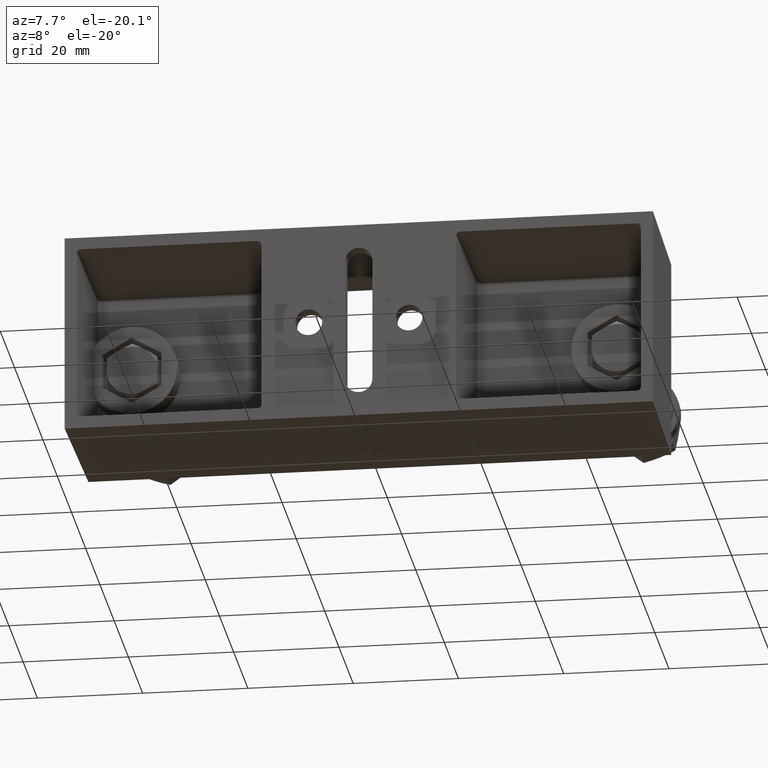
[diagram: clean part render]
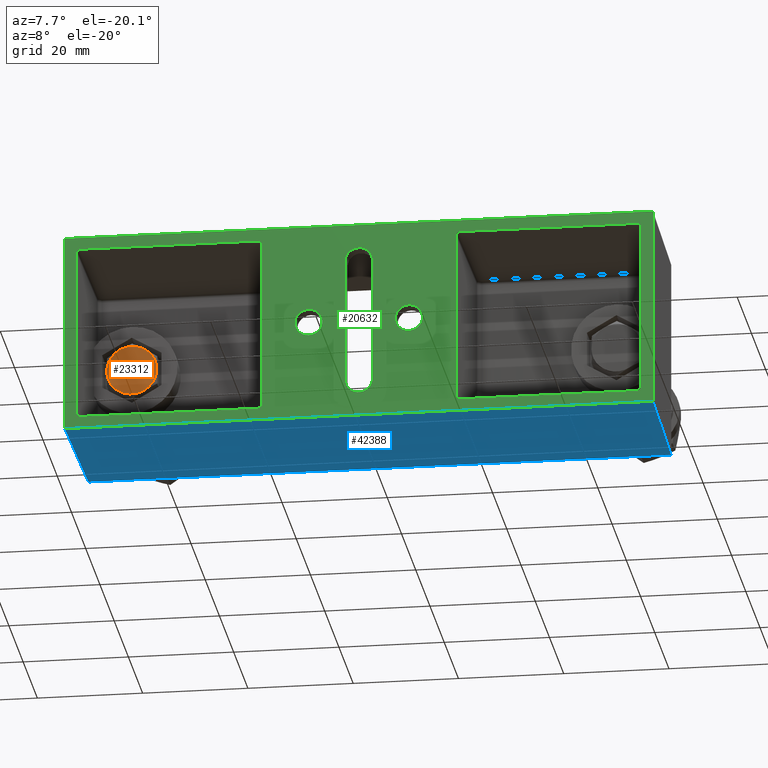
[diagram: same view with three faces highlighted in distinct colors, each labeled with its STEP entity id]
A machine part, auxiliary view with three faces highlighted in distinct colors.
Their STEP definitions:

[orange] entity #23312 — the highlighted planar face has unit normal (0, 1, 0).
#628 = CARTESIAN_POINT ( 'NONE',  ( -1.906750000000000200, 0.8499999999999998700, -0.1623082179422241100 ) ) ;
#3222 = PLANE ( 'NONE',  #10741 ) ;
#3864 = AXIS2_PLACEMENT_3D ( 'NONE', #33698, #4684, #38562 ) ;
#4433 = CIRCLE ( 'NONE', #41683, 0.1875000000000001100 ) ;
#4684 = DIRECTION ( 'NONE',  ( 8.465504826371808000E-018, 1.000000000000000000, 8.788272997978071500E-018 ) ) ;
#4848 = VERTEX_POINT ( 'NONE', #27042 ) ;
#6708 = CARTESIAN_POINT ( 'NONE',  ( -1.719250000000000200, 0.8499999999999998700, -0.1623082179422239700 ) ) ;
#7992 = CIRCLE ( 'NONE', #59649, 0.1875000000000001100 ) ;
#8142 = DIRECTION ( 'NONE',  ( 8.465504826371808000E-018, 1.000000000000000000, 8.788272997978071500E-018 ) ) ;
#8252 = CARTESIAN_POINT ( 'NONE',  ( -2.000500000000000600, 0.8499999999999998700, 7.154526735808339300E-005 ) ) ;
#10741 = AXIS2_PLACEMENT_3D ( 'NONE', #56500, #27566, #61371 ) ;
#13500 = EDGE_CURVE ( 'NONE', #28396, #42262, #23507, .T. ) ;
#13915 = EDGE_CURVE ( 'NONE', #4848, #40392, #56020, .T. ) ;
#17656 = CARTESIAN_POINT ( 'NONE',  ( -1.813000000000000400, 0.8499999999999998700, 7.154526735824306800E-005 ) ) ;
#22471 = DIRECTION ( 'NONE',  ( -1.000000000000000000, 0.0000000000000000000, -6.939000616719477800E-016 ) ) ;
#23312 = ADVANCED_FACE ( 'NONE', ( #33316 ), #3222, .F. ) ;
#23507 = CIRCLE ( 'NONE', #23693, 0.1875000000000001100 ) ;
#23693 = AXIS2_PLACEMENT_3D ( 'NONE', #37152, #8142, #42013 ) ;
#25293 = DIRECTION ( 'NONE',  ( -8.465504826371808000E-018, -1.000000000000000000, -8.788272997978071500E-018 ) ) ;
#27042 = CARTESIAN_POINT ( 'NONE',  ( -1.625500000000000200, 0.8499999999999998700, 7.154526735840274400E-005 ) ) ;
#27098 = DIRECTION ( 'NONE',  ( 8.465504826371808000E-018, 1.000000000000000000, 8.788272997978071500E-018 ) ) ;
#27106 = DIRECTION ( 'NONE',  ( 8.465504826371808000E-018, 1.000000000000000000, 8.788272997978071500E-018 ) ) ;
#27566 = DIRECTION ( 'NONE',  ( 8.465504826371808000E-018, 1.000000000000000000, 8.788272997978071500E-018 ) ) ;
#28081 = EDGE_LOOP ( 'NONE', ( #43594, #58351, #38431, #30215, #52988, #31304 ) ) ;
#28396 = VERTEX_POINT ( 'NONE', #628 ) ;
#29869 = CARTESIAN_POINT ( 'NONE',  ( -1.719250000000000600, 0.8499999999999998700, 0.1624513084769406100 ) ) ;
#30215 = ORIENTED_EDGE ( 'NONE', *, *, #13915, .F. ) ;
#31304 = ORIENTED_EDGE ( 'NONE', *, *, #58977, .F. ) ;
#33143 = VERTEX_POINT ( 'NONE', #61008 ) ;
#33316 = FACE_OUTER_BOUND ( 'NONE', #28081, .T. ) ;
#33698 = CARTESIAN_POINT ( 'NONE',  ( -1.813000000000000400, 0.8499999999999998700, 7.154526735824306800E-005 ) ) ;
#37152 = CARTESIAN_POINT ( 'NONE',  ( -1.813000000000000400, 0.8499999999999998700, 7.154526735824306800E-005 ) ) ;
#38431 = ORIENTED_EDGE ( 'NONE', *, *, #56091, .F. ) ;
#38562 = DIRECTION ( 'NONE',  ( -1.000000000000000000, 0.0000000000000000000, -6.939000616719477800E-016 ) ) ;
#40392 = VERTEX_POINT ( 'NONE', #6708 ) ;
#40877 = AXIS2_PLACEMENT_3D ( 'NONE', #56053, #27106, #60924 ) ;
#41683 = AXIS2_PLACEMENT_3D ( 'NONE', #54297, #25293, #59111 ) ;
#42013 = DIRECTION ( 'NONE',  ( -1.000000000000000000, 0.0000000000000000000, -6.939000616719477800E-016 ) ) ;
#42262 = VERTEX_POINT ( 'NONE', #8252 ) ;
#43594 = ORIENTED_EDGE ( 'NONE', *, *, #51833, .F. ) ;
#50774 = CIRCLE ( 'NONE', #55193, 0.1875000000000001100 ) ;
#51522 = DIRECTION ( 'NONE',  ( 8.465504826371808000E-018, 1.000000000000000000, 8.788272997978071500E-018 ) ) ;
#51833 = EDGE_CURVE ( 'NONE', #42262, #33143, #7992, .T. ) ;
#52988 = ORIENTED_EDGE ( 'NONE', *, *, #59735, .T. ) ;
#53592 = VERTEX_POINT ( 'NONE', #29869 ) ;
#54297 = CARTESIAN_POINT ( 'NONE',  ( -1.813000000000000400, 0.8499999999999998700, 7.154526735824306800E-005 ) ) ;
#55193 = AXIS2_PLACEMENT_3D ( 'NONE', #56042, #27098, #60912 ) ;
#55333 = CIRCLE ( 'NONE', #40877, 0.1875000000000001100 ) ;
#56020 = CIRCLE ( 'NONE', #3864, 0.1875000000000001100 ) ;
#56042 = CARTESIAN_POINT ( 'NONE',  ( -1.813000000000000400, 0.8499999999999998700, 7.154526735824306800E-005 ) ) ;
#56053 = CARTESIAN_POINT ( 'NONE',  ( -1.813000000000000400, 0.8499999999999998700, 7.154526735824306800E-005 ) ) ;
#56091 = EDGE_CURVE ( 'NONE', #40392, #28396, #55333, .T. ) ;
#56500 = CARTESIAN_POINT ( 'NONE',  ( -2.000500000000000600, 0.8499999999999998700, 0.3248310716865227500 ) ) ;
#58351 = ORIENTED_EDGE ( 'NONE', *, *, #13500, .F. ) ;
#58977 = EDGE_CURVE ( 'NONE', #33143, #53592, #50774, .T. ) ;
#59111 = DIRECTION ( 'NONE',  ( 1.000000000000000000, 0.0000000000000000000, 6.939000616719477800E-016 ) ) ;
#59649 = AXIS2_PLACEMENT_3D ( 'NONE', #17656, #51522, #22471 ) ;
#59735 = EDGE_CURVE ( 'NONE', #4848, #53592, #4433, .T. ) ;
#60912 = DIRECTION ( 'NONE',  ( -1.000000000000000000, 0.0000000000000000000, -6.939000616719477800E-016 ) ) ;
#60924 = DIRECTION ( 'NONE',  ( -1.000000000000000000, 0.0000000000000000000, -6.939000616719477800E-016 ) ) ;
#61008 = CARTESIAN_POINT ( 'NONE',  ( -1.906750000000000600, 0.8499999999999998700, 0.1624513084769404800 ) ) ;
#61371 = DIRECTION ( 'NONE',  ( -1.000000000000000000, 8.465504826371814100E-018, -6.938893903907226400E-016 ) ) ;

[blue] entity #42388 — the highlighted planar face has unit normal (0, 0, -1).
#2942 = VECTOR ( 'NONE', #34441, 39.37007874015748100 ) ;
#3169 = CARTESIAN_POINT ( 'NONE',  ( -2.200000000000000200, 0.0000000000000000000, -0.7500000000000001100 ) ) ;
#4234 = VERTEX_POINT ( 'NONE', #34630 ) ;
#5184 = EDGE_CURVE ( 'NONE', #57744, #4234, #15859, .T. ) ;
#5628 = PLANE ( 'NONE',  #32879 ) ;
#9544 = CARTESIAN_POINT ( 'NONE',  ( 2.200000000000000200, 0.0000000000000000000, -0.7500000000000001100 ) ) ;
#10614 = ORIENTED_EDGE ( 'NONE', *, *, #19152, .F. ) ;
#11334 = DIRECTION ( 'NONE',  ( -1.000000000000000000, -0.0000000000000000000, -0.0000000000000000000 ) ) ;
#12669 = EDGE_LOOP ( 'NONE', ( #17403, #39104, #10614, #45114 ) ) ;
#15859 = LINE ( 'NONE', #24674, #2942 ) ;
#17403 = ORIENTED_EDGE ( 'NONE', *, *, #46808, .F. ) ;
#18715 = DIRECTION ( 'NONE',  ( -0.01745240643727953200, -0.9998476951563912700, -0.0000000000000000000 ) ) ;
#19152 = EDGE_CURVE ( 'NONE', #4234, #44688, #61108, .T. ) ;
#24674 = CARTESIAN_POINT ( 'NONE',  ( -2.200000000000000200, 0.0000000000000000000, -0.7500000000000001100 ) ) ;
#25514 = CARTESIAN_POINT ( 'NONE',  ( 0.0000000000000000000, 0.0000000000000000000, -0.7500000000000001100 ) ) ;
#25591 = LINE ( 'NONE', #57184, #51392 ) ;
#30409 = DIRECTION ( 'NONE',  ( -1.000000000000000000, 0.0000000000000000000, -0.0000000000000000000 ) ) ;
#32241 = CARTESIAN_POINT ( 'NONE',  ( -2.179664849358631300, 1.165000000000000000, -0.7500000000000001100 ) ) ;
#32879 = AXIS2_PLACEMENT_3D ( 'NONE', #25514, #59343, #30409 ) ;
#34441 = DIRECTION ( 'NONE',  ( 1.000000000000000000, 0.0000000000000000000, 0.0000000000000000000 ) ) ;
#34630 = CARTESIAN_POINT ( 'NONE',  ( 2.200000000000000200, 0.0000000000000000000, -0.7500000000000001100 ) ) ;
#35471 = VECTOR ( 'NONE', #11334, 39.37007874015748100 ) ;
#38033 = CARTESIAN_POINT ( 'NONE',  ( 2.179664849358631300, 1.165000000000000000, -0.7500000000000001100 ) ) ;
#38550 = DIRECTION ( 'NONE',  ( -0.01745240643727953200, 0.9998476951563912700, 0.0000000000000000000 ) ) ;
#39104 = ORIENTED_EDGE ( 'NONE', *, *, #59828, .F. ) ;
#40368 = CARTESIAN_POINT ( 'NONE',  ( -2.179664849358631300, 1.165000000000000000, -0.7500000000000001100 ) ) ;
#42388 = ADVANCED_FACE ( 'NONE', ( #60477 ), #5628, .T. ) ;
#44688 = VERTEX_POINT ( 'NONE', #38033 ) ;
#45114 = ORIENTED_EDGE ( 'NONE', *, *, #5184, .F. ) ;
#46808 = EDGE_CURVE ( 'NONE', #55329, #57744, #25591, .T. ) ;
#48320 = VECTOR ( 'NONE', #38550, 39.37007874015748100 ) ;
#51392 = VECTOR ( 'NONE', #18715, 39.37007874015748100 ) ;
#55329 = VERTEX_POINT ( 'NONE', #32241 ) ;
#57184 = CARTESIAN_POINT ( 'NONE',  ( -2.200000000000000200, 0.0000000000000000000, -0.7500000000000001100 ) ) ;
#57744 = VERTEX_POINT ( 'NONE', #3169 ) ;
#59343 = DIRECTION ( 'NONE',  ( 0.0000000000000000000, 0.0000000000000000000, -1.000000000000000000 ) ) ;
#59828 = EDGE_CURVE ( 'NONE', #44688, #55329, #61153, .T. ) ;
#60477 = FACE_OUTER_BOUND ( 'NONE', #12669, .T. ) ;
#61108 = LINE ( 'NONE', #9544, #48320 ) ;
#61153 = LINE ( 'NONE', #40368, #35471 ) ;

[green] entity #20632 — the highlighted planar face has unit normal (0, 1, 0).
#61 = ORIENTED_EDGE ( 'NONE', *, *, #24441, .T. ) ;
#239 = AXIS2_PLACEMENT_3D ( 'NONE', #1350, #35245, #6212 ) ;
#538 = CARTESIAN_POINT ( 'NONE',  ( 0.7274999999999999200, 0.0000000000000000000, 0.6300045691453081100 ) ) ;
#683 = VERTEX_POINT ( 'NONE', #886 ) ;
#800 = EDGE_LOOP ( 'NONE', ( #20197, #61524, #9992, #48160 ) ) ;
#858 = VECTOR ( 'NONE', #30399, 39.37007874015748100 ) ;
#875 = EDGE_CURVE ( 'NONE', #26017, #26027, #6018, .T. ) ;
#886 = CARTESIAN_POINT ( 'NONE',  ( 2.080004569145308400, 0.0000000000000000000, 0.6600000000000000300 ) ) ;
#950 = CARTESIAN_POINT ( 'NONE',  ( -0.7574954308546917300, 0.0000000000000000000, 0.6599999999999999200 ) ) ;
#959 = CARTESIAN_POINT ( 'NONE',  ( 0.7274999999999998100, 0.0000000000000000000, -0.6475765939548033800 ) ) ;
#1063 = ORIENTED_EDGE ( 'NONE', *, *, #41734, .T. ) ;
#1327 = CARTESIAN_POINT ( 'NONE',  ( -2.110000000000000300, 0.0000000000000000000, 0.6475765939548034900 ) ) ;
#1350 = CARTESIAN_POINT ( 'NONE',  ( -1.721241076201604300E-016, 0.0000000000000000000, -0.4685000000000000300 ) ) ;
#1707 =( BOUNDED_CURVE ( )  B_SPLINE_CURVE ( 3, ( #21078, #50100, #54917, #25943 ),
 .UNSPECIFIED., .F., .F. ) 
 B_SPLINE_CURVE_WITH_KNOTS ( ( 4, 4 ),
 ( 2.356346783439921700, 3.926838523739659700 ),
 .UNSPECIFIED. ) 
 CURVE ( )  GEOMETRIC_REPRESENTATION_ITEM ( )  RATIONAL_B_SPLINE_CURVE ( ( 1.000000000000000000, 0.8048096403827848000, 0.8048096403827848000, 1.000000000000000000 ) ) 
 REPRESENTATION_ITEM ( '' )  );
#1810 = CARTESIAN_POINT ( 'NONE',  ( 0.7274999999999999200, 0.0000000000000000000, -0.6599999999999999200 ) ) ;
#2001 = FACE_OUTER_BOUND ( 'NONE', #800, .T. ) ;
#2533 = LINE ( 'NONE', #39493, #39683 ) ;
#2942 = VECTOR ( 'NONE', #34441, 39.37007874015748100 ) ;
#3169 = CARTESIAN_POINT ( 'NONE',  ( -2.200000000000000200, 0.0000000000000000000, -0.7500000000000001100 ) ) ;
#3435 = VECTOR ( 'NONE', #28348, 39.37007874015748100 ) ;
#3490 = VERTEX_POINT ( 'NONE', #24633 ) ;
#3816 = LINE ( 'NONE', #35938, #15202 ) ;
#4151 = ORIENTED_EDGE ( 'NONE', *, *, #36989, .F. ) ;
#4185 = CARTESIAN_POINT ( 'NONE',  ( 0.7274999999999999200, 0.0000000000000000000, 0.6300045691453081100 ) ) ;
#4234 = VERTEX_POINT ( 'NONE', #34630 ) ;
#4275 = VECTOR ( 'NONE', #53569, 39.37007874015748100 ) ;
#5041 = CIRCLE ( 'NONE', #48923, 0.1014999999999999900 ) ;
#5058 = FACE_BOUND ( 'NONE', #41242, .T. ) ;
#5076 = VERTEX_POINT ( 'NONE', #23201 ) ;
#5184 = EDGE_CURVE ( 'NONE', #57744, #4234, #15859, .T. ) ;
#5288 = ORIENTED_EDGE ( 'NONE', *, *, #49028, .T. ) ;
#5299 = CARTESIAN_POINT ( 'NONE',  ( 2.110000000000000300, 0.0000000000000000000, -0.6300045691453083400 ) ) ;
#5325 = VECTOR ( 'NONE', #53972, 39.37007874015748100 ) ;
#5530 = EDGE_CURVE ( 'NONE', #7739, #5076, #15015, .T. ) ;
#5666 = VERTEX_POINT ( 'NONE', #47284 ) ;
#6018 = LINE ( 'NONE', #37785, #55963 ) ;
#6084 = ORIENTED_EDGE ( 'NONE', *, *, #43210, .T. ) ;
#6194 = CARTESIAN_POINT ( 'NONE',  ( -2.080004569145308400, 0.0000000000000000000, 0.6600000000000000300 ) ) ;
#6212 = DIRECTION ( 'NONE',  ( 0.0000000000000000000, 0.0000000000000000000, 1.000000000000000000 ) ) ;
#6467 = LINE ( 'NONE', #57704, #32233 ) ;
#7136 =( BOUNDED_CURVE ( )  B_SPLINE_CURVE ( 3, ( #538, #10091, #19811, #34437 ),
 .UNSPECIFIED., .F., .F. ) 
 B_SPLINE_CURVE_WITH_KNOTS ( ( 4, 4 ),
 ( 2.356346783439912800, 3.926838523739655300 ),
 .UNSPECIFIED. ) 
 CURVE ( )  GEOMETRIC_REPRESENTATION_ITEM ( )  RATIONAL_B_SPLINE_CURVE ( ( 1.000000000000000000, 0.8048096403827838000, 0.8048096403827838000, 1.000000000000000000 ) ) 
 REPRESENTATION_ITEM ( '' )  );
#7195 = CARTESIAN_POINT ( 'NONE',  ( -0.1015000000000001900, 0.0000000000000000000, 0.4685000000000000300 ) ) ;
#7510 = ORIENTED_EDGE ( 'NONE', *, *, #43182, .F. ) ;
#7572 = EDGE_CURVE ( 'NONE', #31006, #26843, #7136, .T. ) ;
#7684 = ORIENTED_EDGE ( 'NONE', *, *, #24297, .T. ) ;
#7739 = VERTEX_POINT ( 'NONE', #7195 ) ;
#8177 = VERTEX_POINT ( 'NONE', #10762 ) ;
#8322 = EDGE_CURVE ( 'NONE', #683, #26843, #3816, .T. ) ;
#8398 = CIRCLE ( 'NONE', #47447, 0.1014999999999999900 ) ;
#8854 = VECTOR ( 'NONE', #26930, 39.37007874015748100 ) ;
#9213 = LINE ( 'NONE', #31626, #59113 ) ;
#9972 = CARTESIAN_POINT ( 'NONE',  ( 2.080004569145308400, 0.0000000000000000000, 0.6600000000000000300 ) ) ;
#9983 =( BOUNDED_CURVE ( )  B_SPLINE_CURVE ( 3, ( #61336, #1327, #35225, #6194 ),
 .UNSPECIFIED., .F., .F. ) 
 B_SPLINE_CURVE_WITH_KNOTS ( ( 4, 4 ),
 ( 2.356346783439926500, 3.926838523739664600 ),
 .UNSPECIFIED. ) 
 CURVE ( )  GEOMETRIC_REPRESENTATION_ITEM ( )  RATIONAL_B_SPLINE_CURVE ( ( 1.000000000000000000, 0.8048096403827848000, 0.8048096403827848000, 1.000000000000000000 ) ) 
 REPRESENTATION_ITEM ( '' )  );
#9992 = ORIENTED_EDGE ( 'NONE', *, *, #15697, .F. ) ;
#10091 = CARTESIAN_POINT ( 'NONE',  ( 0.7274999999999997000, 0.0000000000000000000, 0.6475765939548037100 ) ) ;
#10123 = VERTEX_POINT ( 'NONE', #50220 ) ;
#10136 = VERTEX_POINT ( 'NONE', #21195 ) ;
#10271 = VERTEX_POINT ( 'NONE', #11872 ) ;
#10392 = EDGE_CURVE ( 'NONE', #10136, #30757, #41400, .T. ) ;
#10677 = ORIENTED_EDGE ( 'NONE', *, *, #5530, .T. ) ;
#10762 = CARTESIAN_POINT ( 'NONE',  ( 0.7274999999999999200, 0.0000000000000000000, -0.6300045691453081100 ) ) ;
#11778 = DIRECTION ( 'NONE',  ( -1.000000000000000000, 0.0000000000000000000, -9.880101242908723600E-017 ) ) ;
#11872 = CARTESIAN_POINT ( 'NONE',  ( -2.200000000000000200, 0.0000000000000000000, 0.7500000000000001100 ) ) ;
#11970 = DIRECTION ( 'NONE',  ( -0.0000000000000000000, -0.0000000000000000000, -1.000000000000000000 ) ) ;
#12035 = CARTESIAN_POINT ( 'NONE',  ( -0.3750000000000000600, 0.0000000000000000000, 0.0000000000000000000 ) ) ;
#12250 = CARTESIAN_POINT ( 'NONE',  ( -0.7274999999999999200, 0.0000000000000000000, -0.6475765939548033800 ) ) ;
#12261 =( BOUNDED_CURVE ( )  B_SPLINE_CURVE ( 3, ( #31494, #12250, #55779, #26829 ),
 .UNSPECIFIED., .F., .F. ) 
 B_SPLINE_CURVE_WITH_KNOTS ( ( 4, 4 ),
 ( 2.356346783439926500, 3.926838523739664600 ),
 .UNSPECIFIED. ) 
 CURVE ( )  GEOMETRIC_REPRESENTATION_ITEM ( )  RATIONAL_B_SPLINE_CURVE ( ( 1.000000000000000000, 0.8048096403827848000, 0.8048096403827848000, 1.000000000000000000 ) ) 
 REPRESENTATION_ITEM ( '' )  );
#12466 = VECTOR ( 'NONE', #11970, 39.37007874015748100 ) ;
#12481 = ORIENTED_EDGE ( 'NONE', *, *, #10392, .F. ) ;
#12725 = CARTESIAN_POINT ( 'NONE',  ( -0.7274999999999999200, 0.0000000000000000000, -0.6300045691453081100 ) ) ;
#13225 = EDGE_CURVE ( 'NONE', #5666, #46193, #29660, .T. ) ;
#13306 = ORIENTED_EDGE ( 'NONE', *, *, #7572, .T. ) ;
#13632 = DIRECTION ( 'NONE',  ( 0.0000000000000000000, 1.000000000000000000, 0.0000000000000000000 ) ) ;
#13751 = VERTEX_POINT ( 'NONE', #12725 ) ;
#13952 = DIRECTION ( 'NONE',  ( 0.0000000000000000000, 1.000000000000000000, 0.0000000000000000000 ) ) ;
#13997 = EDGE_CURVE ( 'NONE', #683, #30757, #41901, .T. ) ;
#14092 = EDGE_CURVE ( 'NONE', #31006, #8177, #55253, .T. ) ;
#14472 = AXIS2_PLACEMENT_3D ( 'NONE', #24455, #58265, #29323 ) ;
#14593 = CARTESIAN_POINT ( 'NONE',  ( 2.200000000000000200, 0.0000000000000000000, 0.7500000000000001100 ) ) ;
#14892 = ORIENTED_EDGE ( 'NONE', *, *, #24833, .T. ) ;
#14921 = FACE_BOUND ( 'NONE', #38190, .T. ) ;
#15015 = CIRCLE ( 'NONE', #57684, 0.1015000000000002000 ) ;
#15065 = CARTESIAN_POINT ( 'NONE',  ( 2.110000000000000300, 0.0000000000000000000, -0.6475765939548034900 ) ) ;
#15202 = VECTOR ( 'NONE', #11778, 39.37007874015748100 ) ;
#15697 = EDGE_CURVE ( 'NONE', #10271, #20695, #40566, .T. ) ;
#15839 = ORIENTED_EDGE ( 'NONE', *, *, #875, .F. ) ;
#15859 = LINE ( 'NONE', #24674, #2942 ) ;
#16539 = CARTESIAN_POINT ( 'NONE',  ( -0.7574954308546918400, 0.0000000000000000000, -0.6599999999999999200 ) ) ;
#16965 = DIRECTION ( 'NONE',  ( 0.0000000000000000000, 0.0000000000000000000, 1.000000000000000000 ) ) ;
#17066 = CARTESIAN_POINT ( 'NONE',  ( -0.3750000000000000600, 0.0000000000000000000, 0.0000000000000000000 ) ) ;
#17891 = CARTESIAN_POINT ( 'NONE',  ( -0.7274999999999999200, -0.0000000000000000000, -0.6599999999999999200 ) ) ;
#19702 = CARTESIAN_POINT ( 'NONE',  ( 2.110000000000000300, 0.0000000000000000000, 0.6300045691453083400 ) ) ;
#19735 = EDGE_CURVE ( 'NONE', #56278, #3490, #6467, .T. ) ;
#19811 = CARTESIAN_POINT ( 'NONE',  ( 0.7399234060451961300, 0.0000000000000000000, 0.6600000000000002500 ) ) ;
#19911 = CARTESIAN_POINT ( 'NONE',  ( 2.110000000000000300, 0.0000000000000000000, -0.6600000000000000300 ) ) ;
#20081 = VERTEX_POINT ( 'NONE', #51143 ) ;
#20197 = ORIENTED_EDGE ( 'NONE', *, *, #5184, .T. ) ;
#20632 = ADVANCED_FACE ( 'NONE', ( #54995, #14921, #5058, #27758, #40664, #2001 ), #31787, .F. ) ;
#20695 = VERTEX_POINT ( 'NONE', #36867 ) ;
#20842 =( BOUNDED_CURVE ( )  B_SPLINE_CURVE ( 3, ( #55934, #51148, #60820, #31870 ),
 .UNSPECIFIED., .F., .T. ) 
 B_SPLINE_CURVE_WITH_KNOTS ( ( 4, 4 ),
 ( 2.356346783439926500, 3.926838523739682300 ),
 .UNSPECIFIED. ) 
 CURVE ( )  GEOMETRIC_REPRESENTATION_ITEM ( )  RATIONAL_B_SPLINE_CURVE ( ( 1.000000000000000000, 0.8048096403827806900, 0.8048096403827806900, 1.000000000000000000 ) ) 
 REPRESENTATION_ITEM ( '' )  );
#21078 = CARTESIAN_POINT ( 'NONE',  ( -2.080004569145308400, 0.0000000000000000000, -0.6600000000000000300 ) ) ;
#21135 = CARTESIAN_POINT ( 'NONE',  ( -2.080004569145308400, 0.0000000000000000000, -0.6600000000000000300 ) ) ;
#21195 = CARTESIAN_POINT ( 'NONE',  ( 2.110000000000000300, 0.0000000000000000000, -0.6300045691453083400 ) ) ;
#21389 = EDGE_CURVE ( 'NONE', #13751, #26027, #12261, .T. ) ;
#21854 = DIRECTION ( 'NONE',  ( 0.0000000000000000000, 0.0000000000000000000, 1.000000000000000000 ) ) ;
#22059 = CARTESIAN_POINT ( 'NONE',  ( -2.110000000000000300, 0.0000000000000000000, -0.6300045691453083400 ) ) ;
#22178 = CARTESIAN_POINT ( 'NONE',  ( 0.3750000000000000600, 0.0000000000000000000, 0.1014999999999999900 ) ) ;
#23201 = CARTESIAN_POINT ( 'NONE',  ( 0.0000000000000000000, 0.0000000000000000000, 0.5700000000000001700 ) ) ;
#23225 = CARTESIAN_POINT ( 'NONE',  ( -0.3750000000000000600, 0.0000000000000000000, 0.1014999999999999900 ) ) ;
#23778 = VERTEX_POINT ( 'NONE', #22178 ) ;
#23978 = DIRECTION ( 'NONE',  ( 0.0000000000000000000, 1.000000000000000000, 0.0000000000000000000 ) ) ;
#24297 = EDGE_CURVE ( 'NONE', #5076, #56278, #61801, .T. ) ;
#24441 = EDGE_CURVE ( 'NONE', #3490, #20081, #36830, .T. ) ;
#24455 = CARTESIAN_POINT ( 'NONE',  ( 0.0000000000000000000, 0.0000000000000000000, 0.4685000000000000300 ) ) ;
#24566 = VERTEX_POINT ( 'NONE', #61214 ) ;
#24633 = CARTESIAN_POINT ( 'NONE',  ( 0.1015000000000000500, 0.0000000000000000000, -0.4684999999999999200 ) ) ;
#24674 = CARTESIAN_POINT ( 'NONE',  ( -2.200000000000000200, 0.0000000000000000000, -0.7500000000000001100 ) ) ;
#24749 = CARTESIAN_POINT ( 'NONE',  ( 2.080004569145308400, 0.0000000000000000000, -0.6600000000000000300 ) ) ;
#24833 = EDGE_CURVE ( 'NONE', #10136, #24566, #40236, .T. ) ;
#24953 = CARTESIAN_POINT ( 'NONE',  ( 0.7274999999999999200, 0.0000000000000000000, -0.6599999999999999200 ) ) ;
#25094 = CARTESIAN_POINT ( 'NONE',  ( 0.7574954308546917300, 0.0000000000000000000, -0.6599999999999999200 ) ) ;
#25836 = ORIENTED_EDGE ( 'NONE', *, *, #41706, .F. ) ;
#25943 = CARTESIAN_POINT ( 'NONE',  ( -2.110000000000000300, 0.0000000000000000000, -0.6300045691453083400 ) ) ;
#26017 = VERTEX_POINT ( 'NONE', #21135 ) ;
#26027 = VERTEX_POINT ( 'NONE', #16539 ) ;
#26562 = VERTEX_POINT ( 'NONE', #950 ) ;
#26829 = CARTESIAN_POINT ( 'NONE',  ( -0.7574954308546918400, 0.0000000000000000000, -0.6599999999999999200 ) ) ;
#26843 = VERTEX_POINT ( 'NONE', #61018 ) ;
#26930 = DIRECTION ( 'NONE',  ( -1.000000000000000000, 0.0000000000000000000, 9.880101242908723600E-017 ) ) ;
#27124 = DIRECTION ( 'NONE',  ( 0.0000000000000000000, 1.000000000000000000, 0.0000000000000000000 ) ) ;
#27249 = CARTESIAN_POINT ( 'NONE',  ( 2.110000000000000300, 0.0000000000000000000, 0.6300045691453083400 ) ) ;
#27443 = EDGE_CURVE ( 'NONE', #26562, #60887, #20842, .T. ) ;
#27574 = ORIENTED_EDGE ( 'NONE', *, *, #14092, .F. ) ;
#27758 = FACE_BOUND ( 'NONE', #43340, .T. ) ;
#28036 = EDGE_LOOP ( 'NONE', ( #62192, #1063 ) ) ;
#28348 = DIRECTION ( 'NONE',  ( 1.000000000000000000, 0.0000000000000000000, 0.0000000000000000000 ) ) ;
#29120 = CARTESIAN_POINT ( 'NONE',  ( 0.7574954308546917300, 0.0000000000000000000, -0.6599999999999999200 ) ) ;
#29323 = DIRECTION ( 'NONE',  ( 0.0000000000000000000, 0.0000000000000000000, 1.000000000000000000 ) ) ;
#29587 = DIRECTION ( 'NONE',  ( -0.0000000000000000000, -0.0000000000000000000, -1.000000000000000000 ) ) ;
#29660 = CIRCLE ( 'NONE', #32588, 0.1014999999999999900 ) ;
#30399 = DIRECTION ( 'NONE',  ( 1.000000000000000000, 0.0000000000000000000, -9.880101242908723600E-017 ) ) ;
#30757 = VERTEX_POINT ( 'NONE', #27249 ) ;
#30902 = VERTEX_POINT ( 'NONE', #56822 ) ;
#31006 = VERTEX_POINT ( 'NONE', #4185 ) ;
#31494 = CARTESIAN_POINT ( 'NONE',  ( -0.7274999999999999200, 0.0000000000000000000, -0.6300045691453081100 ) ) ;
#31626 = CARTESIAN_POINT ( 'NONE',  ( -0.1015000000000002700, 0.0000000000000000000, 0.7499999999999996700 ) ) ;
#31787 = PLANE ( 'NONE',  #62049 ) ;
#31870 = CARTESIAN_POINT ( 'NONE',  ( -0.7274999999999999200, 0.0000000000000000000, 0.6300045691453075600 ) ) ;
#32233 = VECTOR ( 'NONE', #33416, 39.37007874015748100 ) ;
#32588 = AXIS2_PLACEMENT_3D ( 'NONE', #12035, #45904, #16965 ) ;
#33416 = DIRECTION ( 'NONE',  ( -1.822203837823014700E-016, 0.0000000000000000000, -1.000000000000000000 ) ) ;
#34150 = EDGE_CURVE ( 'NONE', #23778, #10123, #5041, .T. ) ;
#34437 = CARTESIAN_POINT ( 'NONE',  ( 0.7574954308546916200, 0.0000000000000000000, 0.6599999999999999200 ) ) ;
#34441 = DIRECTION ( 'NONE',  ( 1.000000000000000000, 0.0000000000000000000, 0.0000000000000000000 ) ) ;
#34624 = DIRECTION ( 'NONE',  ( 0.0000000000000000000, -0.0000000000000000000, -1.000000000000000000 ) ) ;
#34630 = CARTESIAN_POINT ( 'NONE',  ( 2.200000000000000200, 0.0000000000000000000, -0.7500000000000001100 ) ) ;
#34867 = CARTESIAN_POINT ( 'NONE',  ( 0.7274999999999999200, 0.0000000000000000000, -0.6300045691453081100 ) ) ;
#34927 = EDGE_CURVE ( 'NONE', #46193, #5666, #58667, .T. ) ;
#35225 = CARTESIAN_POINT ( 'NONE',  ( -2.097576593954803700, 0.0000000000000000000, 0.6600000000000002500 ) ) ;
#35245 = DIRECTION ( 'NONE',  ( 0.0000000000000000000, 1.000000000000000000, 0.0000000000000000000 ) ) ;
#35722 = VERTEX_POINT ( 'NONE', #36825 ) ;
#35938 = CARTESIAN_POINT ( 'NONE',  ( 2.110000000000000300, 0.0000000000000000000, 0.6600000000000000300 ) ) ;
#36127 = CARTESIAN_POINT ( 'NONE',  ( -2.200000000000000200, 0.0000000000000000000, 0.7500000000000001100 ) ) ;
#36519 = DIRECTION ( 'NONE',  ( 1.822203837823014700E-016, -0.0000000000000000000, 1.000000000000000000 ) ) ;
#36825 = CARTESIAN_POINT ( 'NONE',  ( -2.080004569145308400, 0.0000000000000000000, 0.6600000000000000300 ) ) ;
#36830 = CIRCLE ( 'NONE', #239, 0.1015000000000002000 ) ;
#36867 = CARTESIAN_POINT ( 'NONE',  ( 2.200000000000000200, 0.0000000000000000000, 0.7500000000000001100 ) ) ;
#36989 = EDGE_CURVE ( 'NONE', #30902, #51796, #2533, .T. ) ;
#37052 = ORIENTED_EDGE ( 'NONE', *, *, #34927, .T. ) ;
#37785 = CARTESIAN_POINT ( 'NONE',  ( -2.110000000000000300, -0.0000000000000000000, -0.6600000000000000300 ) ) ;
#38013 = LINE ( 'NONE', #1810, #858 ) ;
#38190 = EDGE_LOOP ( 'NONE', ( #37052, #50740 ) ) ;
#38242 = LINE ( 'NONE', #36127, #12466 ) ;
#38977 = CARTESIAN_POINT ( 'NONE',  ( 2.097576593954803700, 0.0000000000000000000, 0.6600000000000002500 ) ) ;
#39493 = CARTESIAN_POINT ( 'NONE',  ( -2.110000000000000300, 0.0000000000000000000, 0.6600000000000000300 ) ) ;
#39683 = VECTOR ( 'NONE', #34624, 39.37007874015748100 ) ;
#40236 =( BOUNDED_CURVE ( )  B_SPLINE_CURVE ( 3, ( #5299, #15065, #53753, #24749 ),
 .UNSPECIFIED., .F., .F. ) 
 B_SPLINE_CURVE_WITH_KNOTS ( ( 4, 4 ),
 ( 2.356346783439926500, 3.926838523739664600 ),
 .UNSPECIFIED. ) 
 CURVE ( )  GEOMETRIC_REPRESENTATION_ITEM ( )  RATIONAL_B_SPLINE_CURVE ( ( 1.000000000000000000, 0.8048096403827848000, 0.8048096403827848000, 1.000000000000000000 ) ) 
 REPRESENTATION_ITEM ( '' )  );
#40511 = ORIENTED_EDGE ( 'NONE', *, *, #19735, .T. ) ;
#40566 = LINE ( 'NONE', #57295, #3435 ) ;
#40664 = FACE_BOUND ( 'NONE', #41034, .T. ) ;
#40855 = AXIS2_PLACEMENT_3D ( 'NONE', #17066, #50897, #21854 ) ;
#41034 = EDGE_LOOP ( 'NONE', ( #12481, #14892, #61685, #5288, #27574, #13306, #43695, #56159 ) ) ;
#41047 = ORIENTED_EDGE ( 'NONE', *, *, #21389, .T. ) ;
#41092 = ORIENTED_EDGE ( 'NONE', *, *, #41548, .T. ) ;
#41242 = EDGE_LOOP ( 'NONE', ( #41092, #10677, #7684, #40511, #61 ) ) ;
#41400 = LINE ( 'NONE', #19911, #4275 ) ;
#41548 = EDGE_CURVE ( 'NONE', #20081, #7739, #9213, .T. ) ;
#41706 = EDGE_CURVE ( 'NONE', #13751, #60887, #47029, .T. ) ;
#41734 = EDGE_CURVE ( 'NONE', #10123, #23778, #8398, .T. ) ;
#41901 =( BOUNDED_CURVE ( )  B_SPLINE_CURVE ( 3, ( #9972, #38977, #48727, #19702 ),
 .UNSPECIFIED., .F., .T. ) 
 B_SPLINE_CURVE_WITH_KNOTS ( ( 4, 4 ),
 ( 2.356346783439921700, 3.926838523739659700 ),
 .UNSPECIFIED. ) 
 CURVE ( )  GEOMETRIC_REPRESENTATION_ITEM ( )  RATIONAL_B_SPLINE_CURVE ( ( 1.000000000000000000, 0.8048096403827848000, 0.8048096403827848000, 1.000000000000000000 ) ) 
 REPRESENTATION_ITEM ( '' )  );
#42021 = DIRECTION ( 'NONE',  ( 1.000000000000000000, 0.0000000000000000000, 9.880101242908723600E-017 ) ) ;
#42642 = CARTESIAN_POINT ( 'NONE',  ( 0.3750000000000000600, 0.0000000000000000000, 0.0000000000000000000 ) ) ;
#42942 = CARTESIAN_POINT ( 'NONE',  ( 0.3750000000000000600, 0.0000000000000000000, 0.0000000000000000000 ) ) ;
#43182 = EDGE_CURVE ( 'NONE', #26562, #35722, #47484, .T. ) ;
#43210 = EDGE_CURVE ( 'NONE', #30902, #35722, #9983, .T. ) ;
#43340 = EDGE_LOOP ( 'NONE', ( #15839, #53226, #4151, #6084, #7510, #59778, #25836, #41047 ) ) ;
#43695 = ORIENTED_EDGE ( 'NONE', *, *, #8322, .F. ) ;
#45577 =( BOUNDED_CURVE ( )  B_SPLINE_CURVE ( 3, ( #25094, #54095, #959, #34867 ),
 .UNSPECIFIED., .F., .F. ) 
 B_SPLINE_CURVE_WITH_KNOTS ( ( 4, 4 ),
 ( 2.356346783439926500, 3.926838523739664600 ),
 .UNSPECIFIED. ) 
 CURVE ( )  GEOMETRIC_REPRESENTATION_ITEM ( )  RATIONAL_B_SPLINE_CURVE ( ( 1.000000000000000000, 0.8048096403827848000, 0.8048096403827848000, 1.000000000000000000 ) ) 
 REPRESENTATION_ITEM ( '' )  );
#45904 = DIRECTION ( 'NONE',  ( 0.0000000000000000000, 1.000000000000000000, 0.0000000000000000000 ) ) ;
#46062 = VECTOR ( 'NONE', #29587, 39.37007874015748100 ) ;
#46193 = VERTEX_POINT ( 'NONE', #23225 ) ;
#47029 = LINE ( 'NONE', #17891, #59859 ) ;
#47284 = CARTESIAN_POINT ( 'NONE',  ( -0.3750000000000000600, 0.0000000000000000000, -0.1014999999999999900 ) ) ;
#47447 = AXIS2_PLACEMENT_3D ( 'NONE', #42642, #13632, #47507 ) ;
#47484 = LINE ( 'NONE', #56941, #8854 ) ;
#47507 = DIRECTION ( 'NONE',  ( 0.0000000000000000000, 0.0000000000000000000, 1.000000000000000000 ) ) ;
#47832 = DIRECTION ( 'NONE',  ( 0.0000000000000000000, 0.0000000000000000000, 1.000000000000000000 ) ) ;
#47869 = CARTESIAN_POINT ( 'NONE',  ( -0.7274999999999999200, 0.0000000000000000000, 0.6300045691453075600 ) ) ;
#48080 = CARTESIAN_POINT ( 'NONE',  ( 0.1015000000000001900, 0.0000000000000000000, 0.4685000000000000300 ) ) ;
#48160 = ORIENTED_EDGE ( 'NONE', *, *, #54105, .T. ) ;
#48727 = CARTESIAN_POINT ( 'NONE',  ( 2.110000000000000300, 0.0000000000000000000, 0.6475765939548034900 ) ) ;
#48923 = AXIS2_PLACEMENT_3D ( 'NONE', #42942, #13952, #47832 ) ;
#49028 = EDGE_CURVE ( 'NONE', #54900, #8177, #45577, .T. ) ;
#49126 = EDGE_CURVE ( 'NONE', #54900, #24566, #38013, .T. ) ;
#50100 = CARTESIAN_POINT ( 'NONE',  ( -2.097576593954803700, 0.0000000000000000000, -0.6600000000000002500 ) ) ;
#50220 = CARTESIAN_POINT ( 'NONE',  ( 0.3750000000000000600, 0.0000000000000000000, -0.1014999999999999900 ) ) ;
#50438 = EDGE_CURVE ( 'NONE', #20695, #4234, #58885, .T. ) ;
#50606 = EDGE_CURVE ( 'NONE', #26017, #51796, #1707, .T. ) ;
#50740 = ORIENTED_EDGE ( 'NONE', *, *, #13225, .T. ) ;
#50897 = DIRECTION ( 'NONE',  ( 0.0000000000000000000, 1.000000000000000000, 0.0000000000000000000 ) ) ;
#51143 = CARTESIAN_POINT ( 'NONE',  ( -0.1015000000000003500, 0.0000000000000000000, -0.4685000000000000300 ) ) ;
#51148 = CARTESIAN_POINT ( 'NONE',  ( -0.7399234060451964600, 0.0000000000000000000, 0.6600000000000000300 ) ) ;
#51796 = VERTEX_POINT ( 'NONE', #22059 ) ;
#52987 = CARTESIAN_POINT ( 'NONE',  ( 0.0000000000000000000, 0.0000000000000000000, 0.4685000000000000300 ) ) ;
#53226 = ORIENTED_EDGE ( 'NONE', *, *, #50606, .T. ) ;
#53569 = DIRECTION ( 'NONE',  ( 0.0000000000000000000, 0.0000000000000000000, 1.000000000000000000 ) ) ;
#53753 = CARTESIAN_POINT ( 'NONE',  ( 2.097576593954803700, 0.0000000000000000000, -0.6600000000000002500 ) ) ;
#53972 = DIRECTION ( 'NONE',  ( -0.0000000000000000000, -0.0000000000000000000, -1.000000000000000000 ) ) ;
#54095 = CARTESIAN_POINT ( 'NONE',  ( 0.7399234060451964600, 0.0000000000000000000, -0.6600000000000000300 ) ) ;
#54105 = EDGE_CURVE ( 'NONE', #10271, #57744, #38242, .T. ) ;
#54900 = VERTEX_POINT ( 'NONE', #29120 ) ;
#54917 = CARTESIAN_POINT ( 'NONE',  ( -2.110000000000000300, 0.0000000000000000000, -0.6475765939548034900 ) ) ;
#54995 = FACE_BOUND ( 'NONE', #28036, .T. ) ;
#55253 = LINE ( 'NONE', #24953, #5325 ) ;
#55779 = CARTESIAN_POINT ( 'NONE',  ( -0.7399234060451966900, 0.0000000000000000000, -0.6600000000000000300 ) ) ;
#55934 = CARTESIAN_POINT ( 'NONE',  ( -0.7574954308546917300, 0.0000000000000000000, 0.6599999999999999200 ) ) ;
#55963 = VECTOR ( 'NONE', #42021, 39.37007874015748100 ) ;
#56073 = CARTESIAN_POINT ( 'NONE',  ( -2.200000000000000200, 0.0000000000000000000, 0.7500000000000001100 ) ) ;
#56159 = ORIENTED_EDGE ( 'NONE', *, *, #13997, .T. ) ;
#56278 = VERTEX_POINT ( 'NONE', #48080 ) ;
#56749 = DIRECTION ( 'NONE',  ( 0.0000000000000000000, 0.0000000000000000000, 1.000000000000000000 ) ) ;
#56822 = CARTESIAN_POINT ( 'NONE',  ( -2.110000000000000300, 0.0000000000000000000, 0.6300045691453083400 ) ) ;
#56941 = CARTESIAN_POINT ( 'NONE',  ( -0.7274999999999999200, 0.0000000000000000000, 0.6599999999999999200 ) ) ;
#57295 = CARTESIAN_POINT ( 'NONE',  ( -2.200000000000000200, 0.0000000000000000000, 0.7500000000000001100 ) ) ;
#57684 = AXIS2_PLACEMENT_3D ( 'NONE', #52987, #23978, #57805 ) ;
#57704 = CARTESIAN_POINT ( 'NONE',  ( 0.1015000000000002700, 0.0000000000000000000, 0.7499999999999996700 ) ) ;
#57744 = VERTEX_POINT ( 'NONE', #3169 ) ;
#57805 = DIRECTION ( 'NONE',  ( 0.0000000000000000000, 0.0000000000000000000, 1.000000000000000000 ) ) ;
#58265 = DIRECTION ( 'NONE',  ( 0.0000000000000000000, 1.000000000000000000, 0.0000000000000000000 ) ) ;
#58667 = CIRCLE ( 'NONE', #40855, 0.1014999999999999900 ) ;
#58885 = LINE ( 'NONE', #14593, #46062 ) ;
#59113 = VECTOR ( 'NONE', #36519, 39.37007874015748100 ) ;
#59778 = ORIENTED_EDGE ( 'NONE', *, *, #27443, .T. ) ;
#59859 = VECTOR ( 'NONE', #56749, 39.37007874015748100 ) ;
#60820 = CARTESIAN_POINT ( 'NONE',  ( -0.7274999999999995900, 0.0000000000000000000, 0.6475765939548031600 ) ) ;
#60887 = VERTEX_POINT ( 'NONE', #47869 ) ;
#60945 = DIRECTION ( 'NONE',  ( 0.0000000000000000000, -0.0000000000000000000, 1.000000000000000000 ) ) ;
#61018 = CARTESIAN_POINT ( 'NONE',  ( 0.7574954308546916200, 0.0000000000000000000, 0.6599999999999999200 ) ) ;
#61214 = CARTESIAN_POINT ( 'NONE',  ( 2.080004569145308400, 0.0000000000000000000, -0.6600000000000000300 ) ) ;
#61336 = CARTESIAN_POINT ( 'NONE',  ( -2.110000000000000300, 0.0000000000000000000, 0.6300045691453083400 ) ) ;
#61524 = ORIENTED_EDGE ( 'NONE', *, *, #50438, .F. ) ;
#61685 = ORIENTED_EDGE ( 'NONE', *, *, #49126, .F. ) ;
#61801 = CIRCLE ( 'NONE', #14472, 0.1015000000000002000 ) ;
#62049 = AXIS2_PLACEMENT_3D ( 'NONE', #56073, #27124, #60945 ) ;
#62192 = ORIENTED_EDGE ( 'NONE', *, *, #34150, .T. ) ;